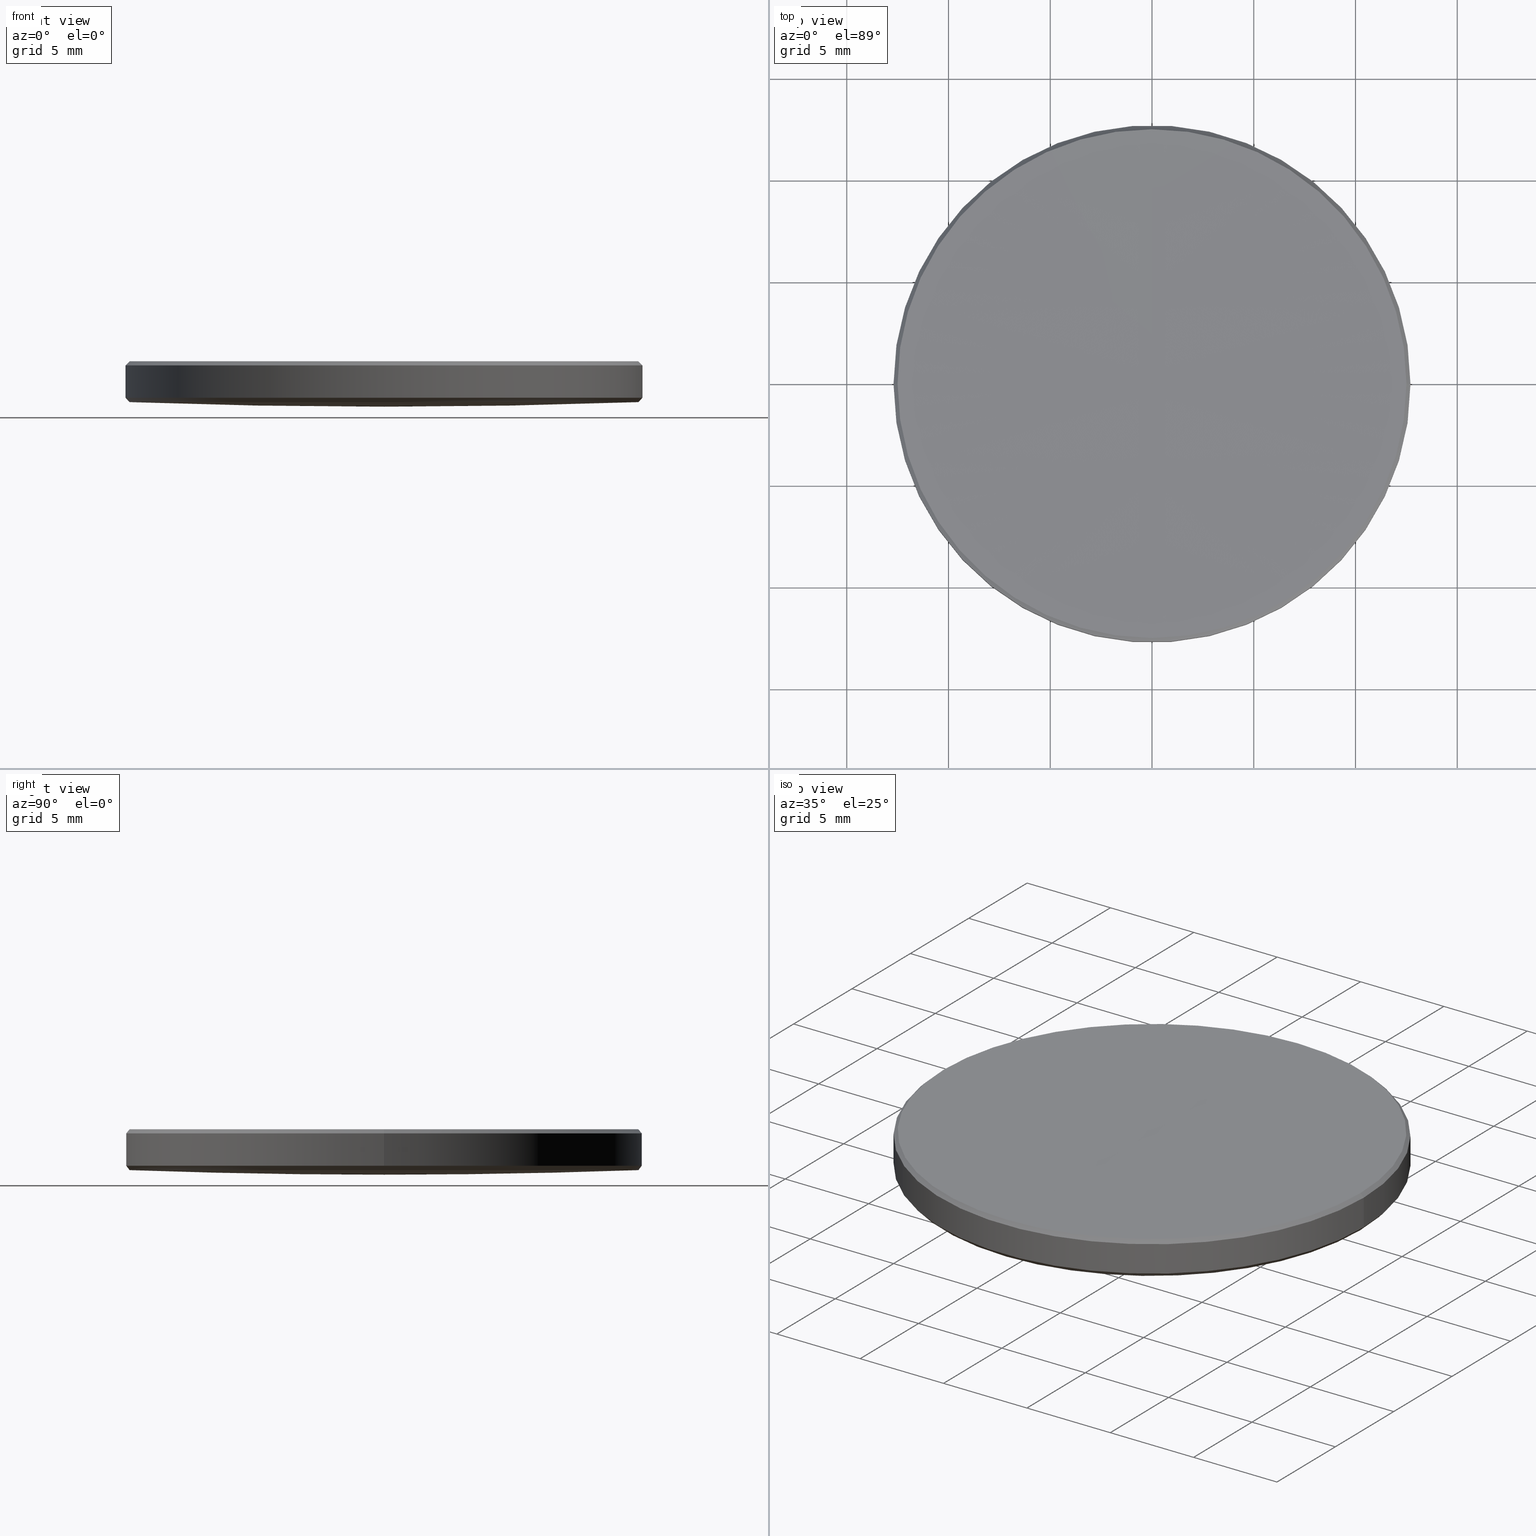
[diagram: canonical four-view strip — front | top / right | iso, engineering-drawing reading convention]
A machine part, canonical four-view strip (front | top / right | iso — engineering-drawing reading convention). The complete STEP part file that produces these views, byte-faithful:
ISO-10303-21;
HEADER;
FILE_DESCRIPTION (( 'STEP AP214' ),
    '1' );
FILE_NAME ('GLM2-025B-1000-UV.STEP',
    '2024-08-09T02:48:50',
    ( 'Windows User' ),
    ( 'P R C' ),
    'SwSTEP 2.0',
    'SolidWorks 2022',
    '' );
FILE_SCHEMA (( 'AUTOMOTIVE_DESIGN' ));
ENDSEC;

DATA;
#1 = EDGE_LOOP ( 'NONE', ( #275, #233, #287, #98, #329 ) ) ;
#2 = SURFACE_SIDE_STYLE ('',( #52 ) ) ;
#3 = ADVANCED_FACE ( 'NONE', ( #315 ), #197, .T. ) ;
#4 = APPLICATION_CONTEXT ( 'automotive_design' ) ;
#5 = VERTEX_POINT ( 'NONE', #166 ) ;
#6 = EDGE_CURVE ( 'NONE', #70, #101, #99, .T. ) ;
#7 = PRODUCT_DEFINITION_CONTEXT ( 'detailed design', #251, 'design' ) ;
#8 = DIRECTION ( 'NONE',  ( 0.000000000000000000, 0.000000000000000000, -1.000000000000000000 ) ) ;
#9 = CIRCLE ( 'NONE', #90, 1425.690000000000055 ) ;
#10 = DIRECTION ( 'NONE',  ( -1.000000000000000000, 0.000000000000000000, 0.000000000000000000 ) ) ;
#11 = ORIENTED_EDGE ( 'NONE', *, *, #196, .T. ) ;
#12 = ORIENTED_EDGE ( 'NONE', *, *, #167, .F. ) ;
#13 = CIRCLE ( 'NONE', #219, 12.50018853125826723 ) ;
#14 = CIRCLE ( 'NONE', #211, 12.69999999999999929 ) ;
#15 = DIRECTION ( 'NONE',  ( -1.000000000000000000, 0.000000000000000000, 0.000000000000000000 ) ) ;
#16 = CARTESIAN_POINT ( 'NONE',  ( 0.000000000000000000, 0.000000000000000000, 4.207718915923863712 ) ) ;
#17 = DIRECTION ( 'NONE',  ( 0.000000000000000000, 0.000000000000000000, -1.000000000000000000 ) ) ;
#18 =( NAMED_UNIT ( * ) PLANE_ANGLE_UNIT ( ) SI_UNIT ( $, .RADIAN. ) );
#19 = CARTESIAN_POINT ( 'NONE',  ( 0.000000000000000000, 0.000000000000000000, 10.00000000000000000 ) ) ;
#20 =( GEOMETRIC_REPRESENTATION_CONTEXT ( 3 ) GLOBAL_UNCERTAINTY_ASSIGNED_CONTEXT ( ( #313 ) ) GLOBAL_UNIT_ASSIGNED_CONTEXT ( ( #172, #18, #220 ) ) REPRESENTATION_CONTEXT ( 'NONE', 'WORKASPACE' ) );
#21 = SURFACE_STYLE_FILL_AREA ( #118 ) ;
#22 =( LENGTH_UNIT ( ) NAMED_UNIT ( * ) SI_UNIT ( .MILLI., .METRE. ) );
#23 = ORIENTED_EDGE ( 'NONE', *, *, #171, .T. ) ;
#24 = DIRECTION ( 'NONE',  ( -1.000000000000000000, 1.224646799147353207E-16, 0.000000000000000000 ) ) ;
#25 = ORIENTED_EDGE ( 'NONE', *, *, #280, .T. ) ;
#26 = AXIS2_PLACEMENT_3D ( 'NONE', #243, #321, #244 ) ;
#27 =( GEOMETRIC_REPRESENTATION_CONTEXT ( 3 ) GLOBAL_UNCERTAINTY_ASSIGNED_CONTEXT ( ( #261 ) ) GLOBAL_UNIT_ASSIGNED_CONTEXT ( ( #22, #95, #123 ) ) REPRESENTATION_CONTEXT ( 'NONE', 'WORKASPACE' ) );
#28 = ORIENTED_EDGE ( 'NONE', *, *, #134, .T. ) ;
#29 = AXIS2_PLACEMENT_3D ( 'NONE', #291, #39, #141 ) ;
#30 = ORIENTED_EDGE ( 'NONE', *, *, #257, .F. ) ;
#31 = ORIENTED_EDGE ( 'NONE', *, *, #136, .F. ) ;
#32 = CARTESIAN_POINT ( 'NONE',  ( 0.000000000000000000, 0.000000000000000000, 1431.633433285008550 ) ) ;
#33 = AXIS2_PLACEMENT_3D ( 'NONE', #97, #17, #281 ) ;
#34 = ADVANCED_FACE ( 'NONE', ( #58 ), #115, .T. ) ;
#35 = DIRECTION ( 'NONE',  ( 0.6808304174335974013, 0.000000000000000000, 0.7324410847960356463 ) ) ;
#36 = VERTEX_POINT ( 'NONE', #55 ) ;
#37 = DIRECTION ( 'NONE',  ( 1.000000000000000000, 0.000000000000000000, 0.000000000000000000 ) ) ;
#38 = AXIS2_PLACEMENT_3D ( 'NONE', #44, #146, #245 ) ;
#39 = DIRECTION ( 'NONE',  ( 0.000000000000000000, 0.000000000000000000, -1.000000000000000000 ) ) ;
#40 = DIRECTION ( 'NONE',  ( -1.000000000000000000, 0.000000000000000000, 0.000000000000000000 ) ) ;
#41 = CARTESIAN_POINT ( 'NONE',  ( -1.531023090019318822E-15, -12.50175226918713633, 5.998247730793604404 ) ) ;
#42 = CARTESIAN_POINT ( 'NONE',  ( 0.000000000000000000, 0.000000000000000000, 4.207718915923863712 ) ) ;
#43 = ORIENTED_EDGE ( 'NONE', *, *, #257, .T. ) ;
#44 = CARTESIAN_POINT ( 'NONE',  ( 0.000000000000000000, 0.000000000000000000, 5.998247730793604404 ) ) ;
#45 = ORIENTED_EDGE ( 'NONE', *, *, #240, .F. ) ;
#46 = LINE ( 'NONE', #91, #56 ) ;
#47 = ORIENTED_EDGE ( 'NONE', *, *, #277, .F. ) ;
#48 = AXIS2_PLACEMENT_3D ( 'NONE', #57, #8, #37 ) ;
#49 = AXIS2_PLACEMENT_3D ( 'NONE', #19, #153, #40 ) ;
#50 =( LENGTH_UNIT ( ) NAMED_UNIT ( * ) SI_UNIT ( .MILLI., .METRE. ) );
#51 = ORIENTED_EDGE ( 'NONE', *, *, #320, .T. ) ;
#52 = SURFACE_STYLE_FILL_AREA ( #77 ) ;
#53 = ORIENTED_EDGE ( 'NONE', *, *, #277, .T. ) ;
#54 = CARTESIAN_POINT ( 'NONE',  ( -12.69999999999999929, 0.000000000000000000, 5.800000000000471445 ) ) ;
#55 = CARTESIAN_POINT ( 'NONE',  ( 0.000000000000000000, 8.729833475381951565E-14, 5.943433285008348221 ) ) ;
#56 = VECTOR ( 'NONE', #278, 1000.000000000000000 ) ;
#57 = CARTESIAN_POINT ( 'NONE',  ( 0.000000000000000000, 0.000000000000000000, 3.992760645593507185 ) ) ;
#58 = FACE_OUTER_BOUND ( 'NONE', #156, .T. ) ;
#59 = PRODUCT_DEFINITION ( 'δ֪', '', #148, #7 ) ;
#60 = DIRECTION ( 'NONE',  ( 1.000000000000000000, 0.000000000000000000, 0.000000000000000000 ) ) ;
#61 = VECTOR ( 'NONE', #295, 1000.000000000000000 ) ;
#62 = CARTESIAN_POINT ( 'NONE',  ( 0.000000000000000000, 0.000000000000000000, 5.998247730793826449 ) ) ;
#63 = CARTESIAN_POINT ( 'NONE',  ( 0.000000000000000000, 0.000000000000000000, 351.7681842837264981 ) ) ;
#64 = SPHERICAL_SURFACE ( 'NONE', #236, 347.9999999999999432 ) ;
#65 = EDGE_CURVE ( 'NONE', #325, #230, #108, .T. ) ;
#66 = SPHERICAL_SURFACE ( 'NONE', #255, 1425.690000000000055 ) ;
#67 = VERTEX_POINT ( 'NONE', #170 ) ;
#68 = AXIS2_PLACEMENT_3D ( 'NONE', #63, #24, #298 ) ;
#69 = DIRECTION ( 'NONE',  ( -1.000000000000000000, 0.000000000000000000, 0.000000000000000000 ) ) ;
#70 = VERTEX_POINT ( 'NONE', #165 ) ;
#71 = ADVANCED_FACE ( 'NONE', ( #168 ), #143, .T. ) ;
#72 = DIRECTION ( 'NONE',  ( 0.000000000000000000, 1.000000000000000000, 0.000000000000000000 ) ) ;
#73 = ORIENTED_EDGE ( 'NONE', *, *, #328, .T. ) ;
#74 = APPLICATION_PROTOCOL_DEFINITION ( 'draft international standard', 'automotive_design', 1998, #4 ) ;
#75 = MECHANICAL_DESIGN_GEOMETRIC_PRESENTATION_REPRESENTATION (  '', ( #81 ), #20 ) ;
#76 =( GEOMETRIC_REPRESENTATION_CONTEXT ( 3 ) GLOBAL_UNCERTAINTY_ASSIGNED_CONTEXT ( ( #149 ) ) GLOBAL_UNIT_ASSIGNED_CONTEXT ( ( #50, #105, #157 ) ) REPRESENTATION_CONTEXT ( 'NONE', 'WORKASPACE' ) );
#77 = FILL_AREA_STYLE ('',( #209 ) ) ;
#78 = VERTEX_POINT ( 'NONE', #112 ) ;
#79 = SHAPE_DEFINITION_REPRESENTATION ( #276, #208 ) ;
#80 = EDGE_CURVE ( 'NONE', #67, #70, #288, .T. ) ;
#81 = STYLED_ITEM ( 'NONE', ( #294 ), #152 ) ;
#82 = MECHANICAL_DESIGN_GEOMETRIC_PRESENTATION_REPRESENTATION (  '', ( #160 ), #76 ) ;
#83 = EDGE_LOOP ( 'NONE', ( #187, #135, #51, #25 ) ) ;
#84 = DIRECTION ( 'NONE',  ( 0.000000000000000000, 1.000000000000000000, 0.000000000000000000 ) ) ;
#85 = CARTESIAN_POINT ( 'NONE',  ( 12.69999999999999929, 0.000000000000000000, 4.207718915923863712 ) ) ;
#86 = AXIS2_PLACEMENT_3D ( 'NONE', #266, #237, #216 ) ;
#87 = CARTESIAN_POINT ( 'NONE',  ( 0.000000000000000000, 0.000000000000000000, 1431.633433285008550 ) ) ;
#88 = DIRECTION ( 'NONE',  ( 0.000000000000000000, 1.000000000000000000, 0.000000000000000000 ) ) ;
#89 = DIRECTION ( 'NONE',  ( 1.000000000000000000, 0.000000000000000000, 0.000000000000000000 ) ) ;
#90 = AXIS2_PLACEMENT_3D ( 'NONE', #194, #60, #213 ) ;
#91 = CARTESIAN_POINT ( 'NONE',  ( 12.69999999999999929, 1.555301434917138433E-15, 10.00000000000000000 ) ) ;
#92 = FACE_OUTER_BOUND ( 'NONE', #1, .T. ) ;
#93 = EDGE_CURVE ( 'NONE', #124, #325, #114, .T. ) ;
#94 = DIRECTION ( 'NONE',  ( -1.000000000000000000, 0.000000000000000000, 0.000000000000000000 ) ) ;
#95 =( NAMED_UNIT ( * ) PLANE_ANGLE_UNIT ( ) SI_UNIT ( $, .RADIAN. ) );
#96 = EDGE_LOOP ( 'NONE', ( #299, #126, #192, #23 ) ) ;
#97 = CARTESIAN_POINT ( 'NONE',  ( 0.000000000000000000, 0.000000000000000000, 5.998247730793826449 ) ) ;
#98 = ORIENTED_EDGE ( 'NONE', *, *, #190, .T. ) ;
#99 = CIRCLE ( 'NONE', #29, 12.69999999999999929 ) ;
#100 = DIRECTION ( 'NONE',  ( -0.000000000000000000, -0.000000000000000000, 1.000000000000000000 ) ) ;
#101 = VERTEX_POINT ( 'NONE', #54 ) ;
#102 = VERTEX_POINT ( 'NONE', #265 ) ;
#103 = CIRCLE ( 'NONE', #128, 12.69999999999999929 ) ;
#104 = ADVANCED_FACE ( 'NONE', ( #189 ), #242, .F. ) ;
#105 =( NAMED_UNIT ( * ) PLANE_ANGLE_UNIT ( ) SI_UNIT ( $, .RADIAN. ) );
#106 = ORIENTED_EDGE ( 'NONE', *, *, #134, .F. ) ;
#107 = EDGE_CURVE ( 'NONE', #36, #151, #169, .T. ) ;
#108 = CIRCLE ( 'NONE', #48, 12.50018853125826723 ) ;
#109 = AXIS2_PLACEMENT_3D ( 'NONE', #252, #125, #120 ) ;
#110 = DIRECTION ( 'NONE',  ( 1.000000000000000000, -0.000000000000000000, 0.000000000000000000 ) ) ;
#111 = EDGE_CURVE ( 'NONE', #101, #70, #293, .T. ) ;
#112 = CARTESIAN_POINT ( 'NONE',  ( -12.50175226920632809, 0.000000000000000000, 5.998247730793604404 ) ) ;
#113 = DIRECTION ( 'NONE',  ( -1.224646799147353454E-16, -1.000000000000000000, 0.000000000000000000 ) ) ;
#114 = CIRCLE ( 'NONE', #286, 347.9999999999999432 ) ;
#115 = SPHERICAL_SURFACE ( 'NONE', #195, 347.9999999999999432 ) ;
#116 = VECTOR ( 'NONE', #155, 1000.000000000000000 ) ;
#117 = CARTESIAN_POINT ( 'NONE',  ( 0.000000000000000000, 0.000000000000000000, 5.800000000000471445 ) ) ;
#118 = FILL_AREA_STYLE ('',( #271 ) ) ;
#119 = CARTESIAN_POINT ( 'NONE',  ( -12.50175226920625349, 0.000000000000000000, 5.998247730793826449 ) ) ;
#120 = DIRECTION ( 'NONE',  ( 1.000000000000000000, 0.000000000000000000, 0.000000000000000000 ) ) ;
#121 = SURFACE_STYLE_USAGE ( .BOTH. , #145 ) ;
#122 = EDGE_CURVE ( 'NONE', #36, #304, #9, .T. ) ;
#123 =( NAMED_UNIT ( * ) SI_UNIT ( $, .STERADIAN. ) SOLID_ANGLE_UNIT ( ) );
#124 = VERTEX_POINT ( 'NONE', #163 ) ;
#125 = DIRECTION ( 'NONE',  ( -0.000000000000000000, -0.000000000000000000, 1.000000000000000000 ) ) ;
#126 = ORIENTED_EDGE ( 'NONE', *, *, #107, .T. ) ;
#127 = CONICAL_SURFACE ( 'NONE', #310, 12.50175226920625349, 0.7853981633984327138 ) ;
#128 = AXIS2_PLACEMENT_3D ( 'NONE', #42, #324, #94 ) ;
#129 = ORIENTED_EDGE ( 'NONE', *, *, #111, .T. ) ;
#130 = APPLICATION_PROTOCOL_DEFINITION ( 'draft international standard', 'automotive_design', 1998, #251 ) ;
#131 = EDGE_CURVE ( 'NONE', #308, #102, #13, .T. ) ;
#132 = CIRCLE ( 'NONE', #316, 12.50018853125826723 ) ;
#133 = ORIENTED_EDGE ( 'NONE', *, *, #131, .T. ) ;
#134 = EDGE_CURVE ( 'NONE', #230, #260, #314, .T. ) ;
#135 = ORIENTED_EDGE ( 'NONE', *, *, #122, .T. ) ;
#136 = EDGE_CURVE ( 'NONE', #230, #308, #258, .T. ) ;
#137 = AXIS2_PLACEMENT_3D ( 'NONE', #140, #215, #290 ) ;
#138 = CONICAL_SURFACE ( 'NONE', #33, 12.50175226920625349, 0.7853981633984327138 ) ;
#139 = DIRECTION ( 'NONE',  ( 0.000000000000000000, 0.000000000000000000, -1.000000000000000000 ) ) ;
#140 = CARTESIAN_POINT ( 'NONE',  ( 0.000000000000000000, 0.000000000000000000, 3.992760645593507185 ) ) ;
#141 = DIRECTION ( 'NONE',  ( 1.000000000000000000, 0.000000000000000000, 0.000000000000000000 ) ) ;
#142 = CONICAL_SURFACE ( 'NONE', #330, 12.69999999999999929, 0.7488958049719834920 ) ;
#143 = CYLINDRICAL_SURFACE ( 'NONE', #176, 12.69999999999999929 ) ;
#144 = DIRECTION ( 'NONE',  ( 1.000000000000000000, 0.000000000000000000, 0.000000000000000000 ) ) ;
#145 = SURFACE_SIDE_STYLE ('',( #21 ) ) ;
#146 = DIRECTION ( 'NONE',  ( -0.000000000000000000, -0.000000000000000000, 1.000000000000000000 ) ) ;
#147 = DIRECTION ( 'NONE',  ( 1.000000000000000000, 0.000000000000000000, 0.000000000000000000 ) ) ;
#148 = PRODUCT_DEFINITION_FORMATION_WITH_SPECIFIED_SOURCE ( '�κ�', '', #326, .NOT_KNOWN. ) ;
#149 = UNCERTAINTY_MEASURE_WITH_UNIT (LENGTH_MEASURE( 1.000000000000000082E-05 ), #50, 'distance_accuracy_value', 'NONE');
#150 = LINE ( 'NONE', #303, #116 ) ;
#151 = VERTEX_POINT ( 'NONE', #41 ) ;
#152 = MANIFOLD_SOLID_BREP ( '����1', #231 ) ;
#153 = DIRECTION ( 'NONE',  ( -0.000000000000000000, -0.000000000000000000, -1.000000000000000000 ) ) ;
#154 = EDGE_LOOP ( 'NONE', ( #45, #161, #43, #332 ) ) ;
#155 = DIRECTION ( 'NONE',  ( -0.000000000000000000, -0.000000000000000000, -1.000000000000000000 ) ) ;
#156 = EDGE_LOOP ( 'NONE', ( #185, #53, #133, #309 ) ) ;
#157 =( NAMED_UNIT ( * ) SI_UNIT ( $, .STERADIAN. ) SOLID_ANGLE_UNIT ( ) );
#158 = SURFACE_STYLE_USAGE ( .BOTH. , #2 ) ;
#159 = AXIS2_PLACEMENT_3D ( 'NONE', #117, #319, #89 ) ;
#160 = STYLED_ITEM ( 'NONE', ( #284 ), #208 ) ;
#161 = ORIENTED_EDGE ( 'NONE', *, *, #6, .T. ) ;
#162 = ORIENTED_EDGE ( 'NONE', *, *, #111, .F. ) ;
#163 = CARTESIAN_POINT ( 'NONE',  ( 0.000000000000000000, 2.130885430516394102E-14, 3.768184283726605521 ) ) ;
#164 = COLOUR_RGB ( '',1.000000000000000000, 1.000000000000000000, 1.000000000000000000 ) ;
#165 = CARTESIAN_POINT ( 'NONE',  ( 12.69999999999999929, 1.555301434917138433E-15, 5.800000000000471445 ) ) ;
#166 = CARTESIAN_POINT ( 'NONE',  ( -12.69999999999999929, 0.000000000000000000, 4.207718915923863712 ) ) ;
#167 = EDGE_CURVE ( 'NONE', #102, #325, #132, .T. ) ;
#168 = FACE_OUTER_BOUND ( 'NONE', #154, .T. ) ;
#169 = CIRCLE ( 'NONE', #300, 1425.690000000000055 ) ;
#170 = CARTESIAN_POINT ( 'NONE',  ( 12.50175226920632809, 1.543162262469403636E-15, 5.998247730793604404 ) ) ;
#171 = EDGE_CURVE ( 'NONE', #67, #304, #254, .T. ) ;
#172 =( LENGTH_UNIT ( ) NAMED_UNIT ( * ) SI_UNIT ( .MILLI., .METRE. ) );
#173 = FACE_OUTER_BOUND ( 'NONE', #96, .T. ) ;
#174 = LINE ( 'NONE', #119, #268 ) ;
#175 = CARTESIAN_POINT ( 'NONE',  ( -12.69999999999999929, 1.555301434917138038E-15, 4.207718915923863712 ) ) ;
#176 = AXIS2_PLACEMENT_3D ( 'NONE', #234, #239, #10 ) ;
#177 = FACE_OUTER_BOUND ( 'NONE', #262, .T. ) ;
#178 = EDGE_LOOP ( 'NONE', ( #279, #256, #162, #250, #210 ) ) ;
#179 = CARTESIAN_POINT ( 'NONE',  ( 0.000000000000000000, 0.000000000000000000, 4.207718915923863712 ) ) ;
#180 = EDGE_LOOP ( 'NONE', ( #212, #207, #31, #28, #285 ) ) ;
#181 = CARTESIAN_POINT ( 'NONE',  ( 0.000000000000000000, 0.000000000000000000, 351.7681842837264981 ) ) ;
#182 = ORIENTED_EDGE ( 'NONE', *, *, #136, .T. ) ;
#183 = AXIS2_PLACEMENT_3D ( 'NONE', #307, #229, #259 ) ;
#184 = ADVANCED_FACE ( 'NONE', ( #323 ), #142, .T. ) ;
#185 = ORIENTED_EDGE ( 'NONE', *, *, #93, .F. ) ;
#186 = ADVANCED_FACE ( 'NONE', ( #92 ), #127, .T. ) ;
#187 = ORIENTED_EDGE ( 'NONE', *, *, #107, .F. ) ;
#188 = CARTESIAN_POINT ( 'NONE',  ( 0.000000000000000000, 0.000000000000000000, 351.7681842837264981 ) ) ;
#189 = FACE_OUTER_BOUND ( 'NONE', #83, .T. ) ;
#190 = EDGE_CURVE ( 'NONE', #78, #101, #174, .T. ) ;
#191 = DIRECTION ( 'NONE',  ( -1.000000000000000000, 0.000000000000000000, 0.000000000000000000 ) ) ;
#192 = ORIENTED_EDGE ( 'NONE', *, *, #263, .T. ) ;
#193 = ADVANCED_FACE ( 'NONE', ( #206 ), #138, .T. ) ;
#194 = CARTESIAN_POINT ( 'NONE',  ( 0.000000000000000000, 0.000000000000000000, 1431.633433285008550 ) ) ;
#195 = AXIS2_PLACEMENT_3D ( 'NONE', #318, #191, #88 ) ;
#196 = EDGE_CURVE ( 'NONE', #102, #5, #327, .T. ) ;
#197 = CONICAL_SURFACE ( 'NONE', #86, 12.69999999999999929, 0.7488958049719834920 ) ;
#198 = DIRECTION ( 'NONE',  ( 0.000000000000000000, 0.000000000000000000, -1.000000000000000000 ) ) ;
#199 = DIRECTION ( 'NONE',  ( -0.7071067811872435716, 0.000000000000000000, -0.7071067811858515739 ) ) ;
#200 = DIRECTION ( 'NONE',  ( 0.000000000000000000, 0.000000000000000000, -1.000000000000000000 ) ) ;
#201 = EDGE_LOOP ( 'NONE', ( #47, #253, #204, #182 ) ) ;
#202 = VECTOR ( 'NONE', #35, 1000.000000000000000 ) ;
#203 = DIRECTION ( 'NONE',  ( -0.000000000000000000, -0.000000000000000000, 1.000000000000000000 ) ) ;
#204 = ORIENTED_EDGE ( 'NONE', *, *, #65, .T. ) ;
#205 = PRODUCT_RELATED_PRODUCT_CATEGORY ( 'part', '', ( #326 ) ) ;
#206 = FACE_OUTER_BOUND ( 'NONE', #178, .T. ) ;
#207 = ORIENTED_EDGE ( 'NONE', *, *, #131, .F. ) ;
#208 = ADVANCED_BREP_SHAPE_REPRESENTATION ( 'GLM2-025B-1000-UV', ( #152, #183 ), #27 ) ;
#209 = FILL_AREA_STYLE_COLOUR ( '', #164 ) ;
#210 = ORIENTED_EDGE ( 'NONE', *, *, #320, .F. ) ;
#211 = AXIS2_PLACEMENT_3D ( 'NONE', #179, #203, #69 ) ;
#212 = ORIENTED_EDGE ( 'NONE', *, *, #196, .F. ) ;
#213 = DIRECTION ( 'NONE',  ( 0.000000000000000000, 0.000000000000000000, -1.000000000000000000 ) ) ;
#214 = CARTESIAN_POINT ( 'NONE',  ( 0.000000000000000000, 0.000000000000000000, 3.992760645593507185 ) ) ;
#215 = DIRECTION ( 'NONE',  ( 0.000000000000000000, 0.000000000000000000, -1.000000000000000000 ) ) ;
#216 = DIRECTION ( 'NONE',  ( 1.000000000000000000, 0.000000000000000000, 0.000000000000000000 ) ) ;
#217 = ADVANCED_FACE ( 'NONE', ( #177 ), #301, .T. ) ;
#218 = DIRECTION ( 'NONE',  ( -0.000000000000000000, -0.000000000000000000, 1.000000000000000000 ) ) ;
#219 = AXIS2_PLACEMENT_3D ( 'NONE', #214, #139, #264 ) ;
#220 =( NAMED_UNIT ( * ) SI_UNIT ( $, .STERADIAN. ) SOLID_ANGLE_UNIT ( ) );
#221 = DIRECTION ( 'NONE',  ( 1.000000000000000000, 0.000000000000000000, 0.000000000000000000 ) ) ;
#222 = DIRECTION ( 'NONE',  ( 0.000000000000000000, 1.000000000000000000, 0.000000000000000000 ) ) ;
#223 = EDGE_CURVE ( 'NONE', #5, #260, #14, .T. ) ;
#224 = FACE_OUTER_BOUND ( 'NONE', #201, .T. ) ;
#225 = VECTOR ( 'NONE', #269, 999.9999999999998863 ) ;
#226 = CIRCLE ( 'NONE', #38, 12.50175226920632809 ) ;
#227 = CARTESIAN_POINT ( 'NONE',  ( 0.000000000000000000, 0.000000000000000000, 5.998247730793604404 ) ) ;
#228 = EDGE_LOOP ( 'NONE', ( #12, #11, #302, #106, #267 ) ) ;
#229 = DIRECTION ( 'NONE',  ( 0.000000000000000000, 0.000000000000000000, 1.000000000000000000 ) ) ;
#230 = VERTEX_POINT ( 'NONE', #297 ) ;
#231 = CLOSED_SHELL ( 'NONE', ( #193, #3, #289, #34, #217, #71, #306, #104, #184, #186 ) ) ;
#232 = PRODUCT_CONTEXT ( 'NONE', #4, 'mechanical' ) ;
#233 = ORIENTED_EDGE ( 'NONE', *, *, #263, .F. ) ;
#234 = CARTESIAN_POINT ( 'NONE',  ( 0.000000000000000000, 0.000000000000000000, 10.00000000000000000 ) ) ;
#235 = PRESENTATION_LAYER_ASSIGNMENT (  '', '', ( #160 ) ) ;
#236 = AXIS2_PLACEMENT_3D ( 'NONE', #181, #331, #222 ) ;
#237 = DIRECTION ( 'NONE',  ( -0.000000000000000000, -0.000000000000000000, 1.000000000000000000 ) ) ;
#238 = DIRECTION ( 'NONE',  ( -1.000000000000000000, 1.224646799147353207E-16, 0.000000000000000000 ) ) ;
#239 = DIRECTION ( 'NONE',  ( -0.000000000000000000, -0.000000000000000000, -1.000000000000000000 ) ) ;
#240 = EDGE_CURVE ( 'NONE', #70, #260, #46, .T. ) ;
#241 = PRESENTATION_LAYER_ASSIGNMENT (  '', '', ( #81 ) ) ;
#242 = SPHERICAL_SURFACE ( 'NONE', #283, 1425.690000000000055 ) ;
#243 = CARTESIAN_POINT ( 'NONE',  ( 0.000000000000000000, 0.000000000000000000, 5.998247730793604404 ) ) ;
#244 = DIRECTION ( 'NONE',  ( 1.000000000000000000, 0.000000000000000000, 0.000000000000000000 ) ) ;
#245 = DIRECTION ( 'NONE',  ( 1.000000000000000000, 0.000000000000000000, 0.000000000000000000 ) ) ;
#246 = AXIS2_PLACEMENT_3D ( 'NONE', #227, #100, #221 ) ;
#247 = CARTESIAN_POINT ( 'NONE',  ( 0.000000000000000000, 0.000000000000000000, 3.992760645593507185 ) ) ;
#248 = DIRECTION ( 'NONE',  ( -1.000000000000000000, 0.000000000000000000, 0.000000000000000000 ) ) ;
#249 = CARTESIAN_POINT ( 'NONE',  ( 0.000000000000000000, 12.50175226918713633, 5.998247730793604404 ) ) ;
#250 = ORIENTED_EDGE ( 'NONE', *, *, #190, .F. ) ;
#251 = APPLICATION_CONTEXT ( 'automotive_design' ) ;
#252 = CARTESIAN_POINT ( 'NONE',  ( 0.000000000000000000, 0.000000000000000000, 5.998247730793604404 ) ) ;
#253 = ORIENTED_EDGE ( 'NONE', *, *, #93, .T. ) ;
#254 = CIRCLE ( 'NONE', #26, 12.50175226920632809 ) ;
#255 = AXIS2_PLACEMENT_3D ( 'NONE', #270, #248, #72 ) ;
#256 = ORIENTED_EDGE ( 'NONE', *, *, #80, .T. ) ;
#257 = EDGE_CURVE ( 'NONE', #101, #5, #150, .T. ) ;
#258 = CIRCLE ( 'NONE', #137, 12.50018853125826723 ) ;
#259 = DIRECTION ( 'NONE',  ( 1.000000000000000000, 0.000000000000000000, 0.000000000000000000 ) ) ;
#260 = VERTEX_POINT ( 'NONE', #272 ) ;
#261 = UNCERTAINTY_MEASURE_WITH_UNIT (LENGTH_MEASURE( 1.000000000000000082E-05 ), #22, 'distance_accuracy_value', 'NONE');
#262 = EDGE_LOOP ( 'NONE', ( #129, #282, #73, #30 ) ) ;
#263 = EDGE_CURVE ( 'NONE', #151, #67, #226, .T. ) ;
#264 = DIRECTION ( 'NONE',  ( 1.000000000000000000, 0.000000000000000000, 0.000000000000000000 ) ) ;
#265 = CARTESIAN_POINT ( 'NONE',  ( -12.50018853125826723, 1.543066511135763359E-15, 3.992760645593507185 ) ) ;
#266 = CARTESIAN_POINT ( 'NONE',  ( 0.000000000000000000, 0.000000000000000000, 4.207718915923863712 ) ) ;
#267 = ORIENTED_EDGE ( 'NONE', *, *, #65, .F. ) ;
#268 = VECTOR ( 'NONE', #199, 999.9999999999998863 ) ;
#269 = DIRECTION ( 'NONE',  ( 0.7071067811872435716, 8.659560562363457486E-17, -0.7071067811858515739 ) ) ;
#270 = CARTESIAN_POINT ( 'NONE',  ( 0.000000000000000000, 0.000000000000000000, 1431.633433285008550 ) ) ;
#271 = FILL_AREA_STYLE_COLOUR ( '', #273 ) ;
#272 = CARTESIAN_POINT ( 'NONE',  ( 12.69999999999999929, 1.555301434917138433E-15, 4.207718915923863712 ) ) ;
#273 = COLOUR_RGB ( '',1.000000000000000000, 1.000000000000000000, 1.000000000000000000 ) ;
#274 = CARTESIAN_POINT ( 'NONE',  ( -1.530831587354516673E-15, -12.50018853125930818, 3.992760645593507185 ) ) ;
#275 = ORIENTED_EDGE ( 'NONE', *, *, #80, .F. ) ;
#276 = PRODUCT_DEFINITION_SHAPE ( 'NONE', 'NONE',  #59 ) ;
#277 = EDGE_CURVE ( 'NONE', #124, #308, #317, .T. ) ;
#278 = DIRECTION ( 'NONE',  ( -0.000000000000000000, -0.000000000000000000, -1.000000000000000000 ) ) ;
#279 = ORIENTED_EDGE ( 'NONE', *, *, #171, .F. ) ;
#280 = EDGE_CURVE ( 'NONE', #78, #151, #305, .T. ) ;
#281 = DIRECTION ( 'NONE',  ( -1.000000000000000000, 0.000000000000000000, 0.000000000000000000 ) ) ;
#282 = ORIENTED_EDGE ( 'NONE', *, *, #240, .T. ) ;
#283 = AXIS2_PLACEMENT_3D ( 'NONE', #32, #15, #84 ) ;
#284 = PRESENTATION_STYLE_ASSIGNMENT (( #158 ) ) ;
#285 = ORIENTED_EDGE ( 'NONE', *, *, #223, .F. ) ;
#286 = AXIS2_PLACEMENT_3D ( 'NONE', #188, #110, #312 ) ;
#287 = ORIENTED_EDGE ( 'NONE', *, *, #280, .F. ) ;
#288 = LINE ( 'NONE', #292, #225 ) ;
#289 = ADVANCED_FACE ( 'NONE', ( #173 ), #66, .F. ) ;
#290 = DIRECTION ( 'NONE',  ( 1.000000000000000000, 0.000000000000000000, 0.000000000000000000 ) ) ;
#291 = CARTESIAN_POINT ( 'NONE',  ( 0.000000000000000000, 0.000000000000000000, 5.800000000000471445 ) ) ;
#292 = CARTESIAN_POINT ( 'NONE',  ( 12.50175226920625349, 1.531023090021659767E-15, 5.998247730793826449 ) ) ;
#293 = CIRCLE ( 'NONE', #159, 12.69999999999999929 ) ;
#294 = PRESENTATION_STYLE_ASSIGNMENT (( #121 ) ) ;
#295 = DIRECTION ( 'NONE',  ( -0.6808304174335974013, 8.337767914722111938E-17, 0.7324410847960356463 ) ) ;
#296 = DIRECTION ( 'NONE',  ( -1.000000000000000000, 0.000000000000000000, 0.000000000000000000 ) ) ;
#297 = CARTESIAN_POINT ( 'NONE',  ( 12.50018853125826723, 0.000000000000000000, 3.992760645593507185 ) ) ;
#298 = DIRECTION ( 'NONE',  ( -1.224646799147353207E-16, -1.000000000000000000, 0.000000000000000000 ) ) ;
#299 = ORIENTED_EDGE ( 'NONE', *, *, #122, .F. ) ;
#300 = AXIS2_PLACEMENT_3D ( 'NONE', #87, #238, #113 ) ;
#301 = CYLINDRICAL_SURFACE ( 'NONE', #49, 12.69999999999999929 ) ;
#302 = ORIENTED_EDGE ( 'NONE', *, *, #328, .F. ) ;
#303 = CARTESIAN_POINT ( 'NONE',  ( -12.69999999999999929, 0.000000000000000000, 10.00000000000000000 ) ) ;
#304 = VERTEX_POINT ( 'NONE', #249 ) ;
#305 = CIRCLE ( 'NONE', #109, 12.50175226920632809 ) ;
#306 = ADVANCED_FACE ( 'NONE', ( #224 ), #64, .T. ) ;
#307 = CARTESIAN_POINT ( 'NONE',  ( 0.000000000000000000, 0.000000000000000000, 0.000000000000000000 ) ) ;
#308 = VERTEX_POINT ( 'NONE', #274 ) ;
#309 = ORIENTED_EDGE ( 'NONE', *, *, #167, .T. ) ;
#310 = AXIS2_PLACEMENT_3D ( 'NONE', #62, #200, #296 ) ;
#311 = CIRCLE ( 'NONE', #246, 12.50175226920632809 ) ;
#312 = DIRECTION ( 'NONE',  ( 0.000000000000000000, 0.000000000000000000, -1.000000000000000000 ) ) ;
#313 = UNCERTAINTY_MEASURE_WITH_UNIT (LENGTH_MEASURE( 1.000000000000000082E-05 ), #172, 'distance_accuracy_value', 'NONE');
#314 = LINE ( 'NONE', #85, #202 ) ;
#315 = FACE_OUTER_BOUND ( 'NONE', #228, .T. ) ;
#316 = AXIS2_PLACEMENT_3D ( 'NONE', #247, #198, #144 ) ;
#317 = CIRCLE ( 'NONE', #68, 347.9999999999999432 ) ;
#318 = CARTESIAN_POINT ( 'NONE',  ( 0.000000000000000000, 0.000000000000000000, 351.7681842837264981 ) ) ;
#319 = DIRECTION ( 'NONE',  ( 0.000000000000000000, 0.000000000000000000, -1.000000000000000000 ) ) ;
#320 = EDGE_CURVE ( 'NONE', #304, #78, #311, .T. ) ;
#321 = DIRECTION ( 'NONE',  ( -0.000000000000000000, -0.000000000000000000, 1.000000000000000000 ) ) ;
#322 = CARTESIAN_POINT ( 'NONE',  ( 0.000000000000000000, 12.50018853125930818, 3.992760645593507185 ) ) ;
#323 = FACE_OUTER_BOUND ( 'NONE', #180, .T. ) ;
#324 = DIRECTION ( 'NONE',  ( -0.000000000000000000, -0.000000000000000000, 1.000000000000000000 ) ) ;
#325 = VERTEX_POINT ( 'NONE', #322 ) ;
#326 = PRODUCT ( 'GLM2-025B-1000-UV', 'GLM2-025B-1000-UV', '', ( #232 ) ) ;
#327 = LINE ( 'NONE', #175, #61 ) ;
#328 = EDGE_CURVE ( 'NONE', #260, #5, #103, .T. ) ;
#329 = ORIENTED_EDGE ( 'NONE', *, *, #6, .F. ) ;
#330 = AXIS2_PLACEMENT_3D ( 'NONE', #16, #218, #147 ) ;
#331 = DIRECTION ( 'NONE',  ( -1.000000000000000000, 0.000000000000000000, 0.000000000000000000 ) ) ;
#332 = ORIENTED_EDGE ( 'NONE', *, *, #223, .T. ) ;
ENDSEC;
END-ISO-10303-21;
